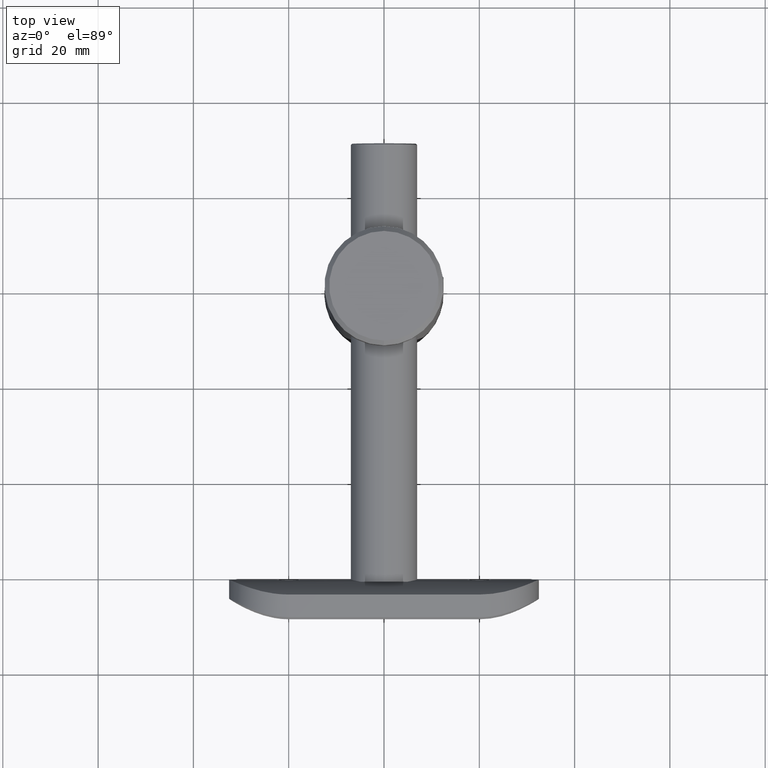
[diagram: clean part render]
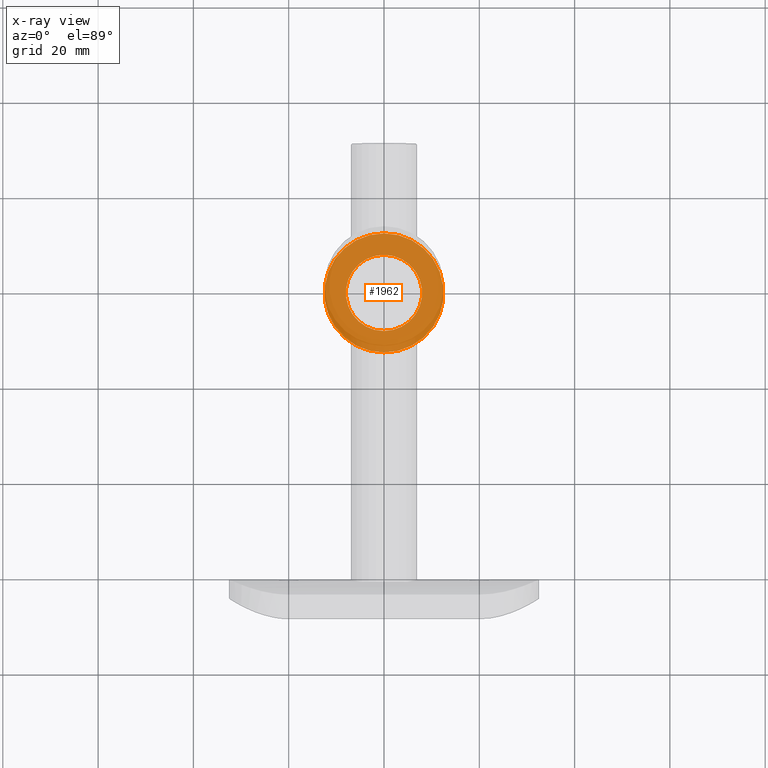
[diagram: x-ray — body ghosted, one internal face saturated and labeled with its STEP entity id]
A machine part, top view, then the same camera in x-ray: the body is ghosted and one INTERNAL B-rep face — a face not visible from any outside direction — is saturated and labeled: STEP entity #1962.
In plain terms, the highlighted planar face has unit normal (0, -0, 1).
Its self-contained STEP definition (entity closure, byte-faithful):
#814 = PLANE ( 'NONE',  #19879 ) ;
#958 = CIRCLE ( 'NONE', #5767, 12.50000000000000000 ) ;
#1592 = DIRECTION ( 'NONE',  ( -0.000000000000000000, 1.224646799147353207E-16, -1.000000000000000000 ) ) ;
#1962 = ADVANCED_FACE ( 'NONE', ( #16321, #3232 ), #814, .T. ) ;
#2014 = CARTESIAN_POINT ( 'NONE',  ( 0.000000000000000000, 12.50000000000000000, 5.000000000000000000 ) ) ;
#2163 = CARTESIAN_POINT ( 'NONE',  ( 0.000000000000000000, -6.123233995736764310E-16, 4.999999999999998224 ) ) ;
#3232 = FACE_BOUND ( 'NONE', #13421, .T. ) ;
#3829 = AXIS2_PLACEMENT_3D ( 'NONE', #7577, #9057, #10932 ) ;
#3947 = CIRCLE ( 'NONE', #19450, 12.50000000000000000 ) ;
#4558 = EDGE_LOOP ( 'NONE', ( #17135, #4889 ) ) ;
#4889 = ORIENTED_EDGE ( 'NONE', *, *, #17003, .F. ) ;
#5767 = AXIS2_PLACEMENT_3D ( 'NONE', #13096, #19438, #10194 ) ;
#6055 = VERTEX_POINT ( 'NONE', #12373 ) ;
#6787 = DIRECTION ( 'NONE',  ( 0.000000000000000000, 1.000000000000000000, 1.387778780781445676E-16 ) ) ;
#6868 = EDGE_CURVE ( 'NONE', #8634, #9893, #958, .T. ) ;
#6922 = DIRECTION ( 'NONE',  ( -0.000000000000000000, 1.224646799147353207E-16, -1.000000000000000000 ) ) ;
#7577 = CARTESIAN_POINT ( 'NONE',  ( 0.000000000000000000, -6.123233995736764310E-16, 4.999999999999998224 ) ) ;
#7877 = ORIENTED_EDGE ( 'NONE', *, *, #18365, .T. ) ;
#8634 = VERTEX_POINT ( 'NONE', #2014 ) ;
#8858 = EDGE_CURVE ( 'NONE', #6055, #16559, #12495, .T. ) ;
#9057 = DIRECTION ( 'NONE',  ( -0.000000000000000000, 1.224646799147353207E-16, -1.000000000000000000 ) ) ;
#9893 = VERTEX_POINT ( 'NONE', #10618 ) ;
#10194 = DIRECTION ( 'NONE',  ( 0.000000000000000000, 1.000000000000000000, 1.387778780781445676E-16 ) ) ;
#10397 = ORIENTED_EDGE ( 'NONE', *, *, #8858, .T. ) ;
#10618 = CARTESIAN_POINT ( 'NONE',  ( 1.530808498934191521E-15, -12.50000000000000000, 4.999999999999996447 ) ) ;
#10932 = DIRECTION ( 'NONE',  ( 0.000000000000000000, 1.000000000000000000, 1.084202172485504434E-16 ) ) ;
#11770 = CARTESIAN_POINT ( 'NONE',  ( 0.000000000000000000, 12.50000000000000000, 4.999999999999999112 ) ) ;
#12373 = CARTESIAN_POINT ( 'NONE',  ( 0.000000000000000000, 8.000000000000000000, 4.999999999999999112 ) ) ;
#12495 = CIRCLE ( 'NONE', #3829, 8.000000000000000000 ) ;
#12825 = CARTESIAN_POINT ( 'NONE',  ( 0.000000000000000000, -6.123233995736764310E-16, 4.999999999999998224 ) ) ;
#13096 = CARTESIAN_POINT ( 'NONE',  ( 0.000000000000000000, -6.123233995736764310E-16, 4.999999999999998224 ) ) ;
#13397 = DIRECTION ( 'NONE',  ( 0.000000000000000000, -1.224646799147353207E-16, 1.000000000000000000 ) ) ;
#13421 = EDGE_LOOP ( 'NONE', ( #10397, #7877 ) ) ;
#14263 = DIRECTION ( 'NONE',  ( 0.000000000000000000, 1.000000000000000000, 1.084202172485504434E-16 ) ) ;
#15881 = AXIS2_PLACEMENT_3D ( 'NONE', #12825, #1592, #14263 ) ;
#16321 = FACE_OUTER_BOUND ( 'NONE', #4558, .T. ) ;
#16559 = VERTEX_POINT ( 'NONE', #19478 ) ;
#17003 = EDGE_CURVE ( 'NONE', #9893, #8634, #3947, .T. ) ;
#17135 = ORIENTED_EDGE ( 'NONE', *, *, #6868, .F. ) ;
#18082 = DIRECTION ( 'NONE',  ( 0.000000000000000000, -1.000000000000000000, -1.224646799147353207E-16 ) ) ;
#18365 = EDGE_CURVE ( 'NONE', #16559, #6055, #19961, .T. ) ;
#19438 = DIRECTION ( 'NONE',  ( -0.000000000000000000, 1.224646799147353207E-16, -1.000000000000000000 ) ) ;
#19450 = AXIS2_PLACEMENT_3D ( 'NONE', #2163, #6922, #6787 ) ;
#19478 = CARTESIAN_POINT ( 'NONE',  ( 9.797174393178825657E-16, -8.000000000000000000, 4.999999999999997335 ) ) ;
#19879 = AXIS2_PLACEMENT_3D ( 'NONE', #11770, #13397, #18082 ) ;
#19961 = CIRCLE ( 'NONE', #15881, 8.000000000000000000 ) ;